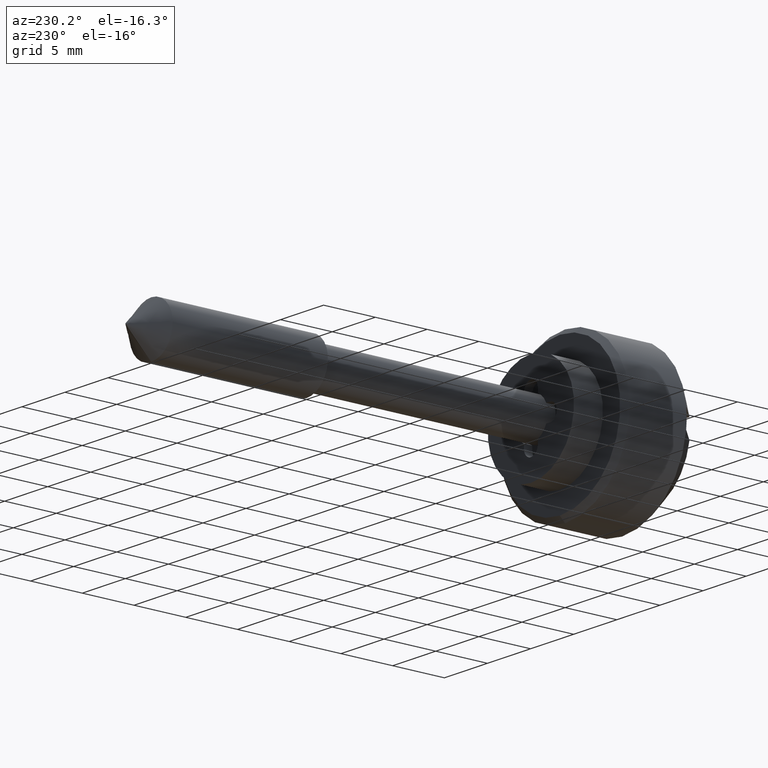
[diagram: clean part render]
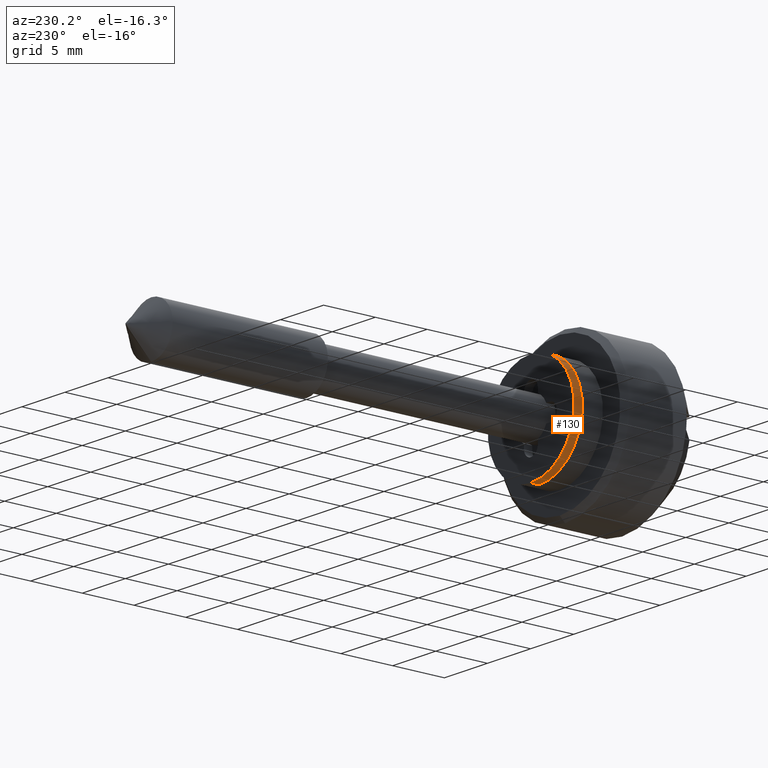
[diagram: same view with one face highlighted and labeled with its STEP entity id]
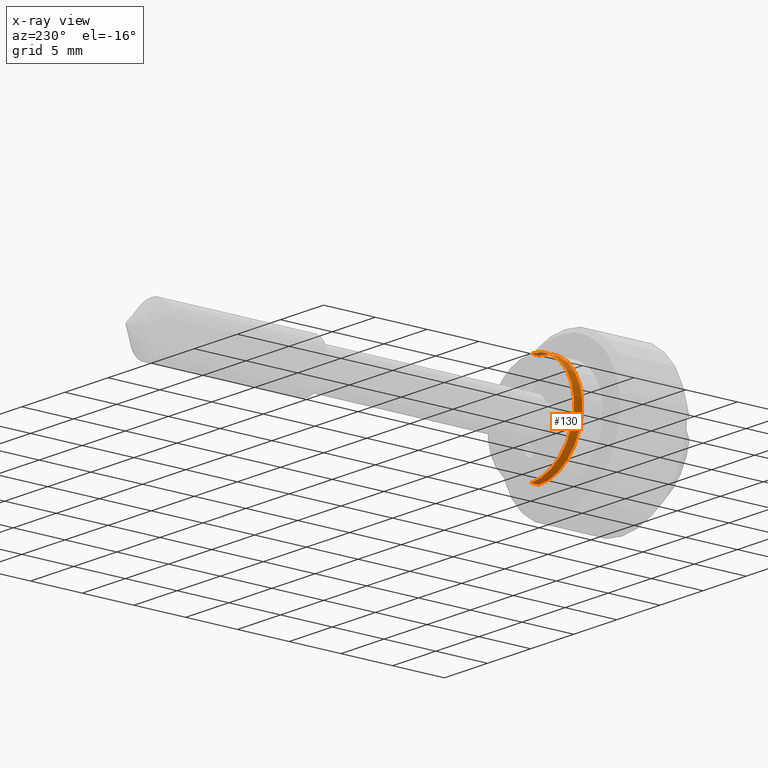
[diagram: x-ray of the same camera — body ghosted, the highlighted face saturated]
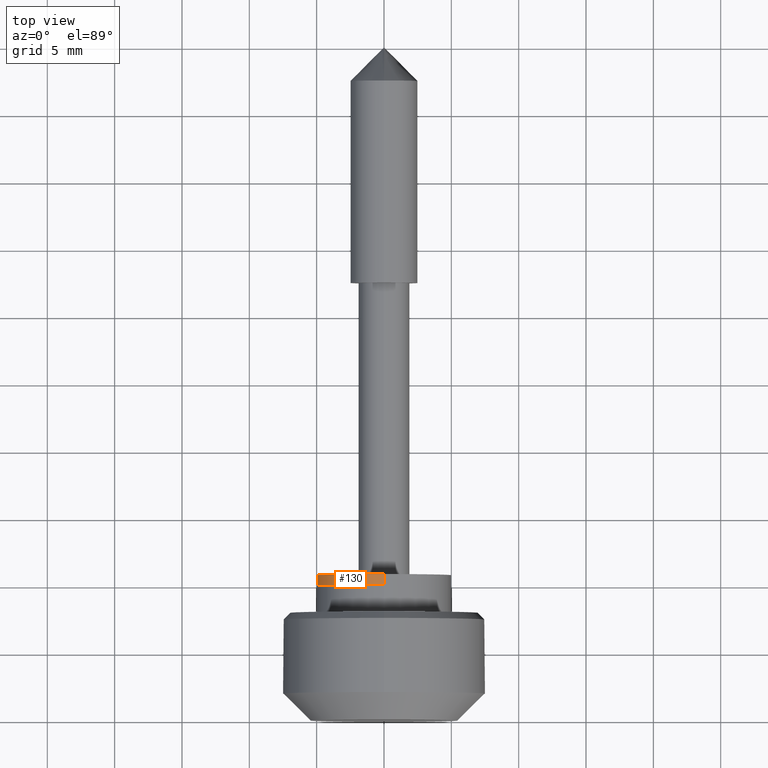
[diagram: same view with one face highlighted and labeled with its STEP entity id]
A machine part, auxiliary view. The second image highlights one B-rep face of the part: STEP entity #130.
The next image is the same camera in x-ray: the body ghosted, the highlighted face saturated — about 0% of this face is hidden behind the body in this view.
A second angle (top view) of the same face is appended — the face is thin or edge-on in the first view.
In plain terms, the highlighted cylindrical surface (partial cylindrical patch) has radius 5 mm, axis along (0, 1, 0).
Its self-contained STEP definition (entity closure, byte-faithful):
#130=ADVANCED_FACE('',(#337),#336,.T.);
#336=CYLINDRICAL_SURFACE('',#674,5.00000000000E+00);
#337=FACE_OUTER_BOUND('',#675,.T.);
#671=CARTESIAN_POINT('',(0.00000000000E+00,1.00000000000E+03,0.00000000000E+00));
#672=DIRECTION('',(-0.00000000000E+00,1.00000000000E+00,-0.00000000000E+00));
#673=DIRECTION('',(1.22464679915E-16,0.00000000000E+00,-1.00000000000E+00));
#674=AXIS2_PLACEMENT_3D('',#671,#672,#673);
#675=EDGE_LOOP('',(#930,#931,#932,#933));
#930=ORIENTED_EDGE('',*,*,#1037,.T.);
#931=ORIENTED_EDGE('',*,*,#1078,.F.);
#932=ORIENTED_EDGE('',*,*,#1073,.F.);
#933=ORIENTED_EDGE('',*,*,#1079,.T.);
#1037=EDGE_CURVE('',#1193,#1192,#1200,.T.);
#1073=EDGE_CURVE('',#1439,#1440,#1441,.T.);
#1078=EDGE_CURVE('',#1440,#1192,#1472,.T.);
#1079=EDGE_CURVE('',#1439,#1193,#1478,.T.);
#1192=VERTEX_POINT('',#1817);
#1193=VERTEX_POINT('',#1818);
#1200=CIRCLE('',#1826,5.00000000000E+00);
#1439=VERTEX_POINT('',#1966);
#1440=VERTEX_POINT('',#1967);
#1441=CIRCLE('',#1971,5.00000000000E+00);
#1472=(BOUNDED_CURVE() B_SPLINE_CURVE(1,(#1987,#1988),.UNSPECIFIED.,.F.,.F.) B_SPLINE_CURVE_WITH_KNOTS((2,2),(8.33332935974E-02,9.16666633252E-01),.UNSPECIFIED.) CURVE() GEOMETRIC_REPRESENTATION_ITEM() RATIONAL_B_SPLINE_CURVE((1.00000000000E+00,1.00000000000E+00)) REPRESENTATION_ITEM('') );
#1478=(BOUNDED_CURVE() B_SPLINE_CURVE(1,(#1989,#1990),.UNSPECIFIED.,.F.,.F.) B_SPLINE_CURVE_WITH_KNOTS((2,2),(8.33333333334E-02,9.16666666667E-01),.UNSPECIFIED.) CURVE() GEOMETRIC_REPRESENTATION_ITEM() RATIONAL_B_SPLINE_CURVE((7.50000000000E-01,7.50000000000E-01)) REPRESENTATION_ITEM('') );
#1817=CARTESIAN_POINT('',(5.92118946467E-16,8.00000000000E-01,-5.00000000000E+00));
#1818=CARTESIAN_POINT('',(0.00000000000E+00,8.00000000000E-01,5.00000000000E+00));
#1823=CARTESIAN_POINT('',(0.00000000000E+00,8.00000000000E-01,0.00000000000E+00));
#1824=DIRECTION('',(-0.00000000000E+00,-1.00000000000E+00,0.00000000000E+00));
#1825=DIRECTION('',(-1.22460635382E-16,0.00000000000E+00,1.00000000000E+00));
#1826=AXIS2_PLACEMENT_3D('',#1823,#1824,#1825);
#1966=CARTESIAN_POINT('',(0.00000000000E+00,0.00000000000E+00,5.00000000000E+00));
#1967=CARTESIAN_POINT('',(5.92118946467E-16,0.00000000000E+00,-5.00000000000E+00));
#1968=CARTESIAN_POINT('',(0.00000000000E+00,0.00000000000E+00,0.00000000000E+00));
#1969=DIRECTION('',(-0.00000000000E+00,-1.00000000000E+00,0.00000000000E+00));
#1970=DIRECTION('',(-1.22460635382E-16,0.00000000000E+00,1.00000000000E+00));
#1971=AXIS2_PLACEMENT_3D('',#1968,#1969,#1970);
#1987=CARTESIAN_POINT('',(6.12323399574E-16,-3.81465210669E-08,-5.00000000000E+00));
#1988=CARTESIAN_POINT('',(6.12323399574E-16,7.99999967922E-01,-5.00000000000E+00));
#1989=CARTESIAN_POINT('',(-2.96059473233E-16,0.00000000000E+00,5.00000000000E+00));
#1990=CARTESIAN_POINT('',(-2.96059473233E-16,8.00000000000E-01,5.00000000000E+00));